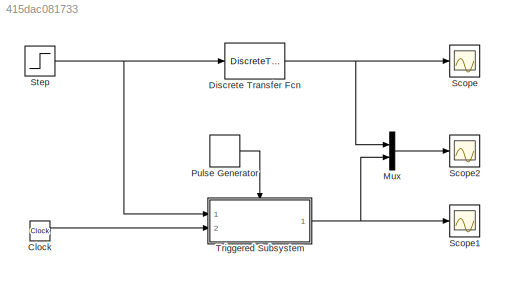
MODEL slx_415dac081733
KIND model
CONFIG AbsTol = auto
CONFIG FixedStep = auto
CONFIG MaxStep = auto
CONFIG MinStep = auto
CONFIG RelTol = 1e-3
CONFIG SampleTimeConstraint = Unconstrained
CONFIG Solver = ode45
CONFIG SolverMode = Auto
CONFIG SolverName = ode45
CONFIG StartTime = 0.0
CONFIG StopTime = 10.0
BLOCK [Clock] Clock
BLOCK [DiscreteTransferFcn] Discrete Transfer Fcn
  Denominator = [1 -1.856 0.8607]
  InputPortMap = u0
  Numerator = [0.4663 -0.4617]
  Ports = [1, 1]
  SampleTime = 0.1
BLOCK [Mux] Mux
  DisplayOption = bar
  Inputs = 2
  Ports = [2, 1]
BLOCK [DiscretePulseGenerator] Pulse Generator
  Period = 0.1
  Ports = [0, 1]
  PulseType = Time based
  PulseWidth = 5
BLOCK [Scope] Scope
  Floating = off
  NumInputPorts = 1
  Ports = [1]
BLOCK [Scope] Scope1
  Floating = off
  NumInputPorts = 1
  Ports = [1]
  SaveName = ScopeData1
BLOCK [Scope] Scope2
  Floating = off
  NumInputPorts = 1
  Ports = [1]
  SaveName = ScopeData2
BLOCK [Step] Step
  SampleTime = 0
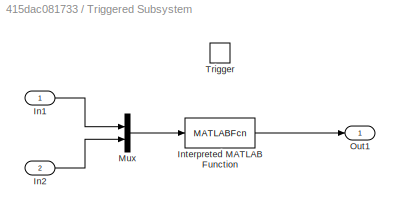
BLOCK [SubSystem] Triggered Subsystem
  Ports = [2, 1, 0, 1]
  RequestExecContextInheritance = off
  TreatAsAtomicUnit = on
BLOCK [Inport] Triggered Subsystem/In1
  IconDisplay = Port number
BLOCK [Inport] Triggered Subsystem/In2
  IconDisplay = Port number
  Port = 2
BLOCK [MATLABFcn] Triggered Subsystem/Interpreted MATLAB Function
  MATLABFcn = prova_sim_sistema(u(1),u(2))
  Ports = [1, 1]
BLOCK [Mux] Triggered Subsystem/Mux
  DisplayOption = bar
  Inputs = 2
  Ports = [2, 1]
BLOCK [Outport] Triggered Subsystem/Out1
  IconDisplay = Port number
BLOCK [TriggerPort] Triggered Subsystem/Trigger
  Ports = []
  StatesWhenEnabling = held
LINE Clock:1 -> Triggered Subsystem:2
NET Discrete Transfer Fcn:1 -> Mux:1, Scope:1
LINE Mux:1 -> Scope2:1
LINE Pulse Generator:1 -> Triggered Subsystem:trigger
NET Step:1 -> Discrete Transfer Fcn:1, Triggered Subsystem:1
LINE Triggered Subsystem/In1:1 -> Triggered Subsystem/Mux:1
LINE Triggered Subsystem/In2:1 -> Triggered Subsystem/Mux:2
LINE Triggered Subsystem/Interpreted MATLAB Function:1 -> Triggered Subsystem/Out1:1
LINE Triggered Subsystem/Mux:1 -> Triggered Subsystem/Interpreted MATLAB Function:1
NET Triggered Subsystem:1 -> Mux:2, Scope1:1
note: NET lines group one-source signal fan-out (src -> all destinations, sorted); 1:1 wires keep LINE
